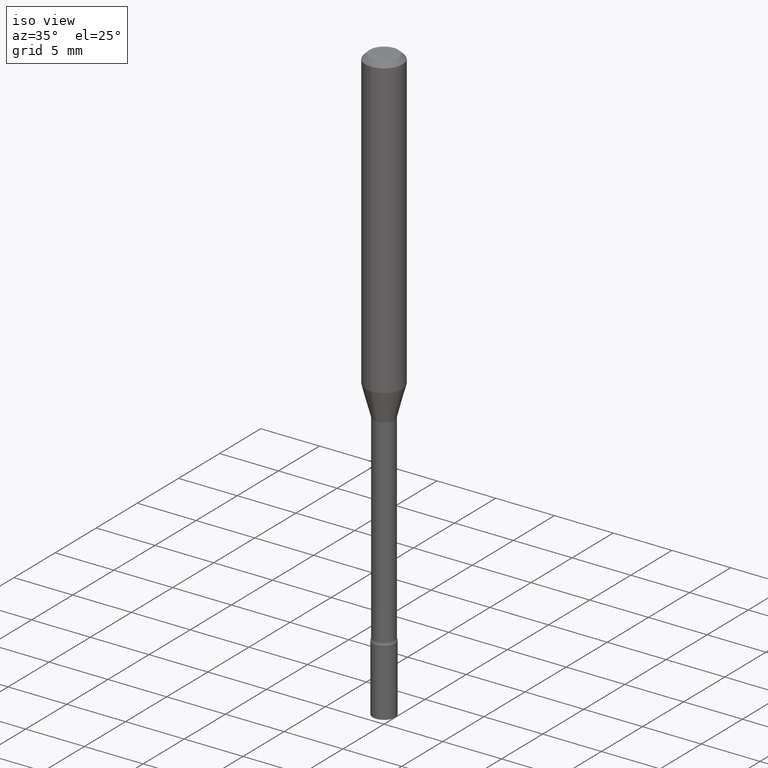
[diagram: clean part render]
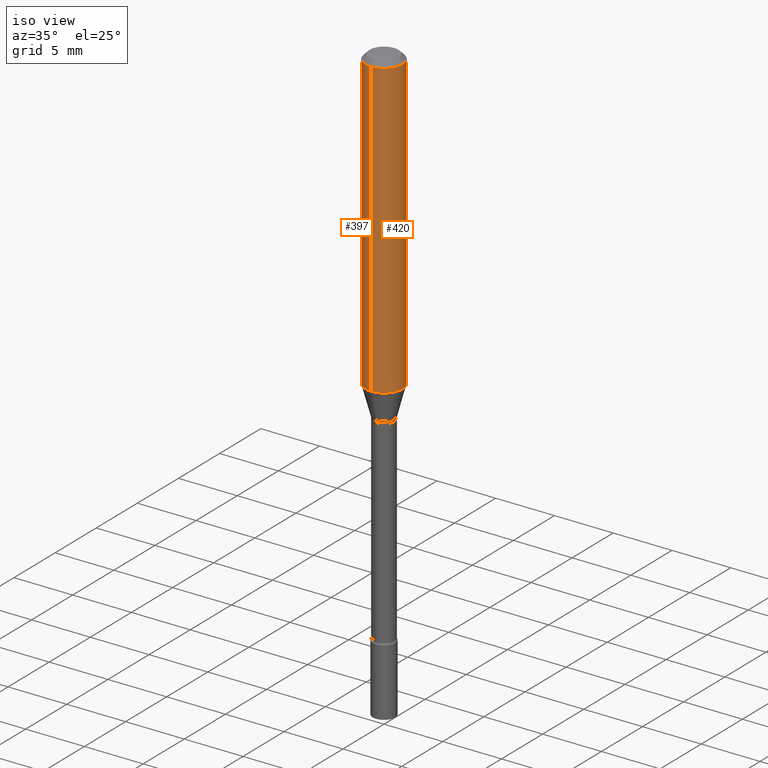
[diagram: same view with one multi-face feature highlighted, each face labeled with its STEP entity id]
A machine part, iso view. The highlighted faces form ONE feature: a constant-radius fillet chain: 2 tangent blend faces with common blend radius 1.5875 mm. The faces share edges in the B-rep.
Their STEP definitions:
[1] entity #397 (Cylinder):
#1 = CARTESIAN_POINT ( 'NONE',  ( 0.000000000000000000, 0.000000000000000000, 0.000000000000000000 ) ) ;
#8 = EDGE_CURVE ( 'NONE', #363, #88, #218, .T. ) ;
#12 = CIRCLE ( 'NONE', #83, 0.06250000000000000000 ) ;
#32 = DIRECTION ( 'NONE',  ( -2.445461058978122069E-29, 3.491492433284533823E-15, 1.000000000000000000 ) ) ;
#33 = CIRCLE ( 'NONE', #304, 0.06250000000000000000 ) ;
#41 = DIRECTION ( 'NONE',  ( -6.982962677686265922E-15, -1.000000000000000000, 3.491492433284533823E-15 ) ) ;
#70 = ORIENTED_EDGE ( 'NONE', *, *, #144, .T. ) ;
#83 = AXIS2_PLACEMENT_3D ( 'NONE', #228, #193, #432 ) ;
#88 = VERTEX_POINT ( 'NONE', #298 ) ;
#117 = EDGE_CURVE ( 'NONE', #485, #88, #33, .T. ) ;
#141 = ORIENTED_EDGE ( 'NONE', *, *, #8, .T. ) ;
#144 = EDGE_CURVE ( 'NONE', #255, #363, #12, .T. ) ;
#193 = DIRECTION ( 'NONE',  ( -2.445461058978122069E-29, 3.491492433284533823E-15, 1.000000000000000000 ) ) ;
#202 = FACE_OUTER_BOUND ( 'NONE', #313, .T. ) ;
#218 = LINE ( 'NONE', #496, #479 ) ;
#228 = CARTESIAN_POINT ( 'NONE',  ( 2.441307725804911996E-29, -3.485562536632148597E-15, -0.9983016154937482955 ) ) ;
#242 = DIRECTION ( 'NONE',  ( -2.445461058978122069E-29, 3.491492433284533823E-15, 1.000000000000000000 ) ) ;
#255 = VERTEX_POINT ( 'NONE', #465 ) ;
#262 = DIRECTION ( 'NONE',  ( -2.445461058978122069E-29, 3.491492433284533823E-15, 1.000000000000000000 ) ) ;
#264 = CARTESIAN_POINT ( 'NONE',  ( 3.668191588467190461E-31, -5.237238649926811729E-17, -0.01500000000000003067 ) ) ;
#297 = VECTOR ( 'NONE', #242, 39.37007874015748143 ) ;
#298 = CARTESIAN_POINT ( 'NONE',  ( -4.364351673553912750E-16, -0.06250000000000005551, -0.01499999999999981209 ) ) ;
#304 = AXIS2_PLACEMENT_3D ( 'NONE', #264, #32, #474 ) ;
#313 = EDGE_LOOP ( 'NONE', ( #481, #70, #141, #322 ) ) ;
#315 = CARTESIAN_POINT ( 'NONE',  ( -4.364351673553671654E-16, -0.06250000000000346945, -0.9983016154937480735 ) ) ;
#322 = ORIENTED_EDGE ( 'NONE', *, *, #117, .F. ) ;
#328 = CARTESIAN_POINT ( 'NONE',  ( 4.440892098500871695E-16, 0.06249999999999995837, -0.01500000000000024751 ) ) ;
#363 = VERTEX_POINT ( 'NONE', #315 ) ;
#388 = LINE ( 'NONE', #476, #297 ) ;
#397 = ADVANCED_FACE ( 'NONE', ( #202 ), #478, .T. ) ;
#410 = EDGE_CURVE ( 'NONE', #255, #485, #388, .T. ) ;
#432 = DIRECTION ( 'NONE',  ( -6.982962677686265922E-15, -1.000000000000000000, 4.370956789862821150E-15 ) ) ;
#465 = CARTESIAN_POINT ( 'NONE',  ( 4.440892098500869722E-16, 0.06249999999999652361, -0.9983016154937485176 ) ) ;
#471 = AXIS2_PLACEMENT_3D ( 'NONE', #1, #486, #41 ) ;
#474 = DIRECTION ( 'NONE',  ( -6.982962677686265922E-15, -1.000000000000000000, 3.483106191921935554E-15 ) ) ;
#476 = CARTESIAN_POINT ( 'NONE',  ( 4.440892098500625669E-16, 0.06250000000000000000, -2.182182770802833639E-16 ) ) ;
#478 = CYLINDRICAL_SURFACE ( 'NONE', #471, 0.06250000000000000000 ) ;
#479 = VECTOR ( 'NONE', #262, 39.37007874015748143 ) ;
#481 = ORIENTED_EDGE ( 'NONE', *, *, #410, .F. ) ;
#485 = VERTEX_POINT ( 'NONE', #328 ) ;
#486 = DIRECTION ( 'NONE',  ( -2.445461058978122069E-29, 3.491492433284533823E-15, 1.000000000000000000 ) ) ;
#496 = CARTESIAN_POINT ( 'NONE',  ( -4.364351673553916201E-16, -0.06250000000000000000, 2.182182770802833639E-16 ) ) ;
[2] entity #420 (Cylinder):
#8 = EDGE_CURVE ( 'NONE', #363, #88, #218, .T. ) ;
#27 = DIRECTION ( 'NONE',  ( -6.982962677686265922E-15, -1.000000000000000000, 3.483106191921935554E-15 ) ) ;
#30 = ORIENTED_EDGE ( 'NONE', *, *, #281, .F. ) ;
#76 = DIRECTION ( 'NONE',  ( -2.445461058978122069E-29, 3.491492433284533823E-15, 1.000000000000000000 ) ) ;
#77 = AXIS2_PLACEMENT_3D ( 'NONE', #214, #369, #492 ) ;
#88 = VERTEX_POINT ( 'NONE', #298 ) ;
#214 = CARTESIAN_POINT ( 'NONE',  ( 0.000000000000000000, 0.000000000000000000, 0.000000000000000000 ) ) ;
#216 = AXIS2_PLACEMENT_3D ( 'NONE', #265, #76, #27 ) ;
#218 = LINE ( 'NONE', #496, #479 ) ;
#242 = DIRECTION ( 'NONE',  ( -2.445461058978122069E-29, 3.491492433284533823E-15, 1.000000000000000000 ) ) ;
#250 = DIRECTION ( 'NONE',  ( -2.445461058978122069E-29, 3.491492433284533823E-15, 1.000000000000000000 ) ) ;
#255 = VERTEX_POINT ( 'NONE', #465 ) ;
#262 = DIRECTION ( 'NONE',  ( -2.445461058978122069E-29, 3.491492433284533823E-15, 1.000000000000000000 ) ) ;
#265 = CARTESIAN_POINT ( 'NONE',  ( 3.668191588467190461E-31, -5.237238649926811729E-17, -0.01500000000000003067 ) ) ;
#281 = EDGE_CURVE ( 'NONE', #88, #485, #424, .T. ) ;
#284 = ORIENTED_EDGE ( 'NONE', *, *, #391, .T. ) ;
#297 = VECTOR ( 'NONE', #242, 39.37007874015748143 ) ;
#298 = CARTESIAN_POINT ( 'NONE',  ( -4.364351673553912750E-16, -0.06250000000000005551, -0.01499999999999981209 ) ) ;
#315 = CARTESIAN_POINT ( 'NONE',  ( -4.364351673553671654E-16, -0.06250000000000346945, -0.9983016154937480735 ) ) ;
#316 = CARTESIAN_POINT ( 'NONE',  ( 2.441307725804911996E-29, -3.485562536632148597E-15, -0.9983016154937482955 ) ) ;
#327 = ORIENTED_EDGE ( 'NONE', *, *, #8, .F. ) ;
#328 = CARTESIAN_POINT ( 'NONE',  ( 4.440892098500871695E-16, 0.06249999999999995837, -0.01500000000000024751 ) ) ;
#352 = EDGE_LOOP ( 'NONE', ( #284, #358, #30, #327 ) ) ;
#355 = AXIS2_PLACEMENT_3D ( 'NONE', #316, #250, #401 ) ;
#358 = ORIENTED_EDGE ( 'NONE', *, *, #410, .T. ) ;
#363 = VERTEX_POINT ( 'NONE', #315 ) ;
#369 = DIRECTION ( 'NONE',  ( -2.445461058978122069E-29, 3.491492433284533823E-15, 1.000000000000000000 ) ) ;
#370 = FACE_OUTER_BOUND ( 'NONE', #352, .T. ) ;
#388 = LINE ( 'NONE', #476, #297 ) ;
#390 = CIRCLE ( 'NONE', #355, 0.06250000000000000000 ) ;
#391 = EDGE_CURVE ( 'NONE', #363, #255, #390, .T. ) ;
#401 = DIRECTION ( 'NONE',  ( -6.982962677686265922E-15, -1.000000000000000000, 4.370956789862821150E-15 ) ) ;
#410 = EDGE_CURVE ( 'NONE', #255, #485, #388, .T. ) ;
#420 = ADVANCED_FACE ( 'NONE', ( #370 ), #490, .T. ) ;
#424 = CIRCLE ( 'NONE', #216, 0.06250000000000000000 ) ;
#465 = CARTESIAN_POINT ( 'NONE',  ( 4.440892098500869722E-16, 0.06249999999999652361, -0.9983016154937485176 ) ) ;
#476 = CARTESIAN_POINT ( 'NONE',  ( 4.440892098500625669E-16, 0.06250000000000000000, -2.182182770802833639E-16 ) ) ;
#479 = VECTOR ( 'NONE', #262, 39.37007874015748143 ) ;
#485 = VERTEX_POINT ( 'NONE', #328 ) ;
#490 = CYLINDRICAL_SURFACE ( 'NONE', #77, 0.06250000000000000000 ) ;
#492 = DIRECTION ( 'NONE',  ( -6.982962677686265922E-15, -1.000000000000000000, 3.491492433284533823E-15 ) ) ;
#496 = CARTESIAN_POINT ( 'NONE',  ( -4.364351673553916201E-16, -0.06250000000000000000, 2.182182770802833639E-16 ) ) ;